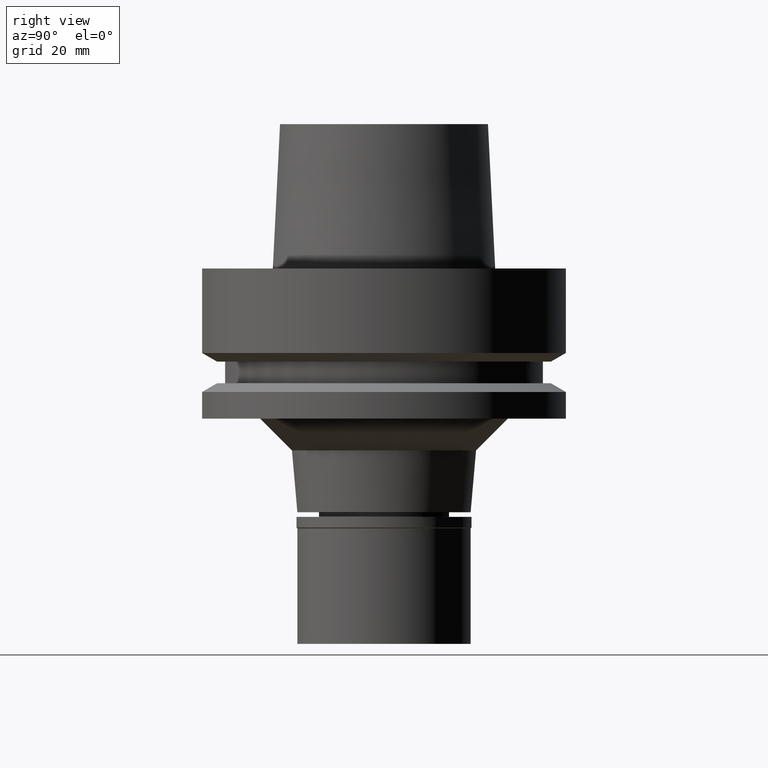
[diagram: clean part render]
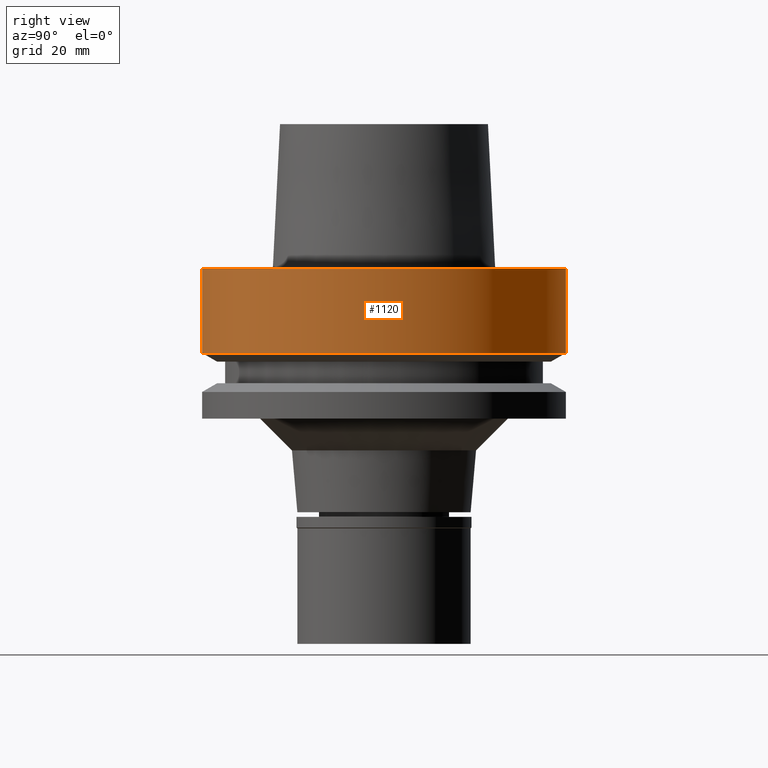
[diagram: same view with one face highlighted and labeled with its STEP entity id]
A machine part, right view. The second image highlights one B-rep face of the part: STEP entity #1120.
In plain terms, the highlighted cylindrical surface (partial cylindrical patch) has radius 31.5 mm, axis along (0, 0, 1).
Its self-contained STEP definition (entity closure, byte-faithful):
#86 = CARTESIAN_POINT ( 'NONE',  ( 0.0000000000000000000, 31.50000000000000000, 1.278976924367999843E-13 ) ) ;
#87 = VECTOR ( 'NONE', #1960, 1000.000000000000000 ) ;
#97 = EDGE_CURVE ( 'NONE', #1956, #2358, #1915, .T. ) ;
#297 = DIRECTION ( 'NONE',  ( 0.0000000000000000000, 0.0000000000000000000, 1.000000000000000000 ) ) ;
#473 = CARTESIAN_POINT ( 'NONE',  ( 0.0000000000000000000, 31.50000000000000000, 6.631732200427999741E-14 ) ) ;
#479 = CARTESIAN_POINT ( 'NONE',  ( 0.0000000000000000000, 0.0000000000000000000, 1.278976924367999843E-13 ) ) ;
#634 = DIRECTION ( 'NONE',  ( 0.0000000000000000000, -4.178948292620000126E-14, -1.000000000000000000 ) ) ;
#872 = LINE ( 'NONE', #473, #87 ) ;
#981 = DIRECTION ( 'NONE',  ( 0.0000000000000000000, 0.0000000000000000000, 1.000000000000000000 ) ) ;
#1115 = VERTEX_POINT ( 'NONE', #1796 ) ;
#1120 = ADVANCED_FACE ( 'NONE', ( #1373 ), #1364, .T. ) ;
#1136 = DIRECTION ( 'NONE',  ( 0.0000000000000000000, 0.0000000000000000000, -1.000000000000000000 ) ) ;
#1364 = CYLINDRICAL_SURFACE ( 'NONE', #1488, 31.50000000000000000 ) ;
#1373 = FACE_OUTER_BOUND ( 'NONE', #2098, .T. ) ;
#1450 = ORIENTED_EDGE ( 'NONE', *, *, #1649, .T. ) ;
#1488 = AXIS2_PLACEMENT_3D ( 'NONE', #2233, #297, #2212 ) ;
#1603 = ORIENTED_EDGE ( 'NONE', *, *, #97, .T. ) ;
#1648 = CARTESIAN_POINT ( 'NONE',  ( 0.0000000000000000000, -31.50000000000000000, 1.278976924367999843E-13 ) ) ;
#1649 = EDGE_CURVE ( 'NONE', #2358, #1115, #2569, .T. ) ;
#1713 = VERTEX_POINT ( 'NONE', #86 ) ;
#1761 = CIRCLE ( 'NONE', #2579, 31.50000000000000000 ) ;
#1796 = CARTESIAN_POINT ( 'NONE',  ( 0.0000000000000000000, 31.50000000000000000, -14.62250092523999889 ) ) ;
#1915 = LINE ( 'NONE', #2096, #2149 ) ;
#1924 = ORIENTED_EDGE ( 'NONE', *, *, #2669, .T. ) ;
#1956 = VERTEX_POINT ( 'NONE', #1648 ) ;
#1960 = DIRECTION ( 'NONE',  ( 0.0000000000000000000, 4.178948292620000126E-14, -1.000000000000000000 ) ) ;
#1982 = DIRECTION ( 'NONE',  ( 0.0000000000000000000, 1.000000000000000000, 0.0000000000000000000 ) ) ;
#2096 = CARTESIAN_POINT ( 'NONE',  ( 0.0000000000000000000, -31.50000000000000000, 6.631732200427999741E-14 ) ) ;
#2098 = EDGE_LOOP ( 'NONE', ( #1924, #1603, #1450, #2576 ) ) ;
#2114 = AXIS2_PLACEMENT_3D ( 'NONE', #2275, #981, #2704 ) ;
#2149 = VECTOR ( 'NONE', #634, 1000.000000000000000 ) ;
#2170 = EDGE_CURVE ( 'NONE', #1713, #1115, #872, .T. ) ;
#2212 = DIRECTION ( 'NONE',  ( 0.0000000000000000000, 1.000000000000000000, 0.0000000000000000000 ) ) ;
#2233 = CARTESIAN_POINT ( 'NONE',  ( 0.0000000000000000000, 0.0000000000000000000, -62.46499999999999631 ) ) ;
#2275 = CARTESIAN_POINT ( 'NONE',  ( 0.0000000000000000000, 0.0000000000000000000, -14.62250092523999889 ) ) ;
#2358 = VERTEX_POINT ( 'NONE', #2734 ) ;
#2569 = CIRCLE ( 'NONE', #2114, 31.50000000000000000 ) ;
#2576 = ORIENTED_EDGE ( 'NONE', *, *, #2170, .F. ) ;
#2579 = AXIS2_PLACEMENT_3D ( 'NONE', #479, #1136, #1982 ) ;
#2669 = EDGE_CURVE ( 'NONE', #1713, #1956, #1761, .T. ) ;
#2704 = DIRECTION ( 'NONE',  ( 0.0000000000000000000, -1.000000000000000000, 0.0000000000000000000 ) ) ;
#2734 = CARTESIAN_POINT ( 'NONE',  ( 0.0000000000000000000, -31.50000000000000000, -14.62250092523999889 ) ) ;